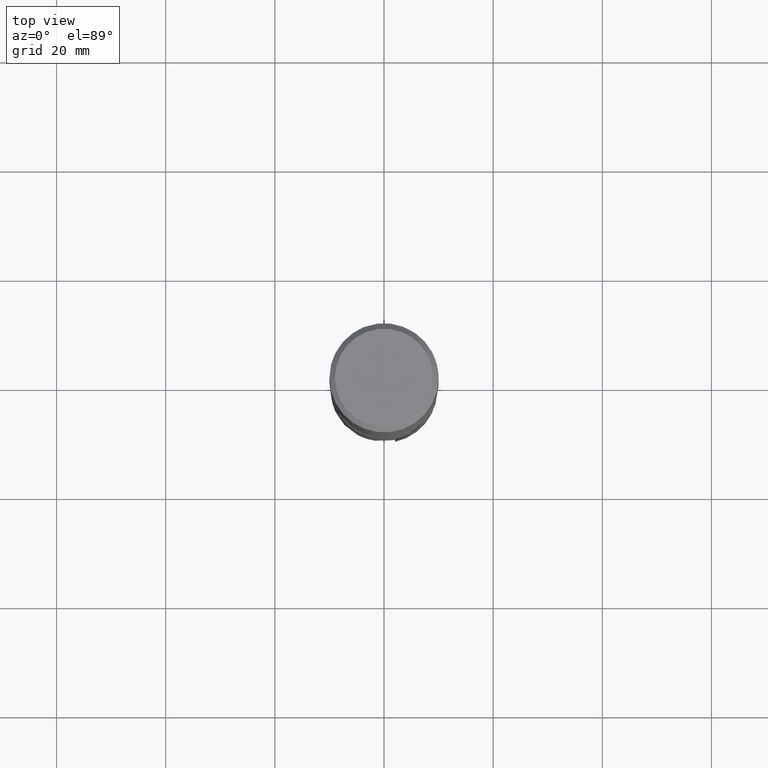
[diagram: clean part render]
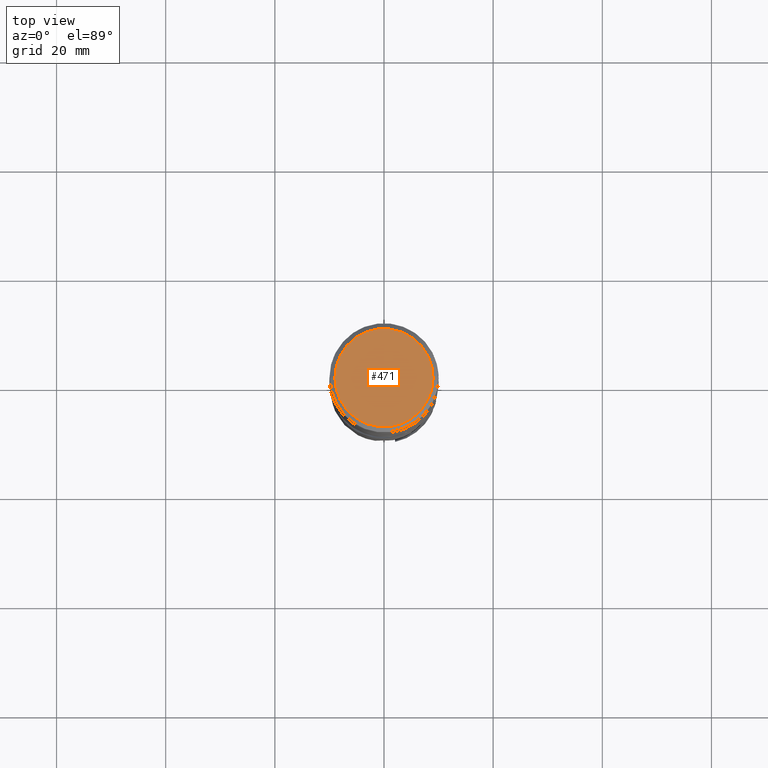
[diagram: same view with one face highlighted and labeled with its STEP entity id]
A machine part, top view. The second image highlights one B-rep face of the part: STEP entity #471.
In plain terms, the highlighted planar face has unit normal (-0, -0, 1).
Its self-contained STEP definition (entity closure, byte-faithful):
#431 = VERTEX_POINT('', #432);
#432 = CARTESIAN_POINT('', (-9., 5.51091059616309E-16, 0.));
#438 = EDGE_CURVE('', #431, #431, #439, .T.);
#439 = CIRCLE('', #440, 9.);
#440 = AXIS2_PLACEMENT_3D('', #441, #442, #443);
#441 = CARTESIAN_POINT('', (-2.18952885050753E-47, 1.34069974920741E-63, 0.));
#442 = DIRECTION('', (3.74939945665464E-33, 6.12323399573677E-17, -1.));
#443 = DIRECTION('', (-1., 6.12323399573677E-17, 0.));
#471 = ADVANCED_FACE('', (#472), #475, .T.);
#472 = FACE_OUTER_BOUND('', #473, .T.);
#473 = EDGE_LOOP('', (#474));
#474 = ORIENTED_EDGE('', *, *, #438, .F.);
#475 = PLANE('', #476);
#476 = AXIS2_PLACEMENT_3D('', #477, #478, #479);
#477 = CARTESIAN_POINT('', (14.0007142674936, -14.0007142674936, -1.19107474048069E-14));
#478 = DIRECTION('', (-5.39683134754044E-32, -8.50724268579701E-16, 1.));
#479 = DIRECTION('', (0., 1., 8.50724268579701E-16));